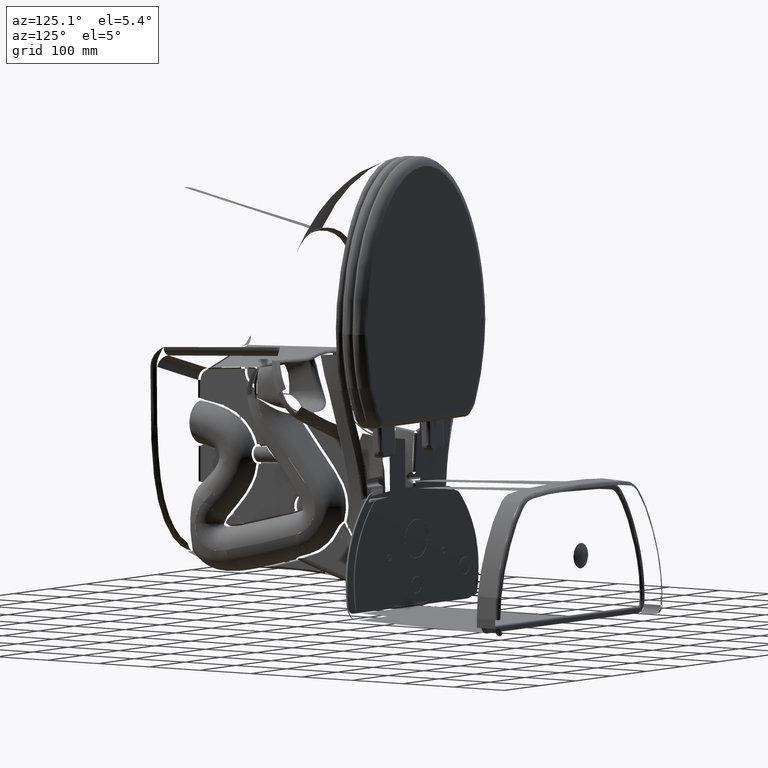
[diagram: clean part render]
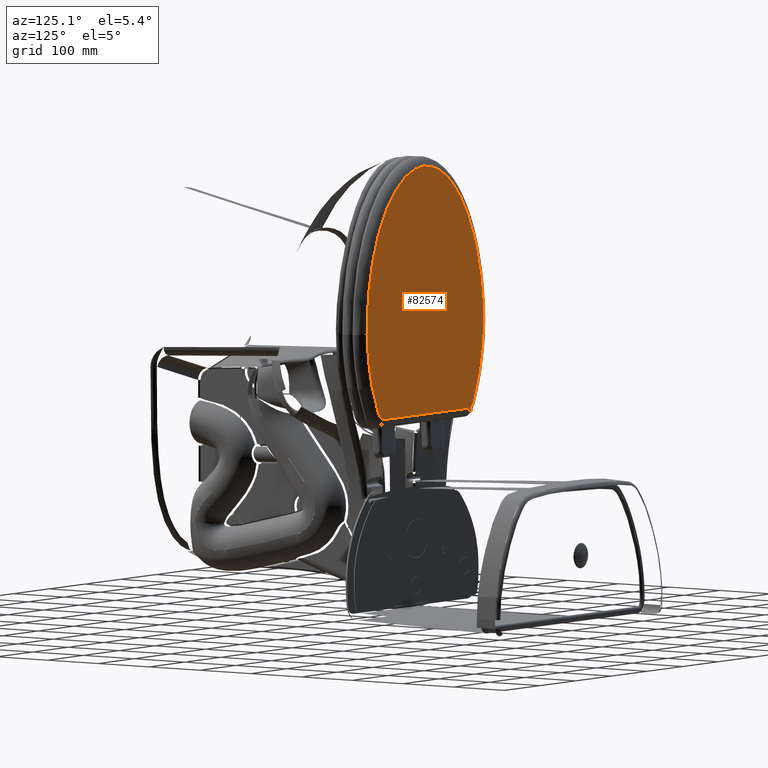
[diagram: same view with one face highlighted and labeled with its STEP entity id]
A machine part, auxiliary view. The second image highlights one B-rep face of the part: STEP entity #82574.
In plain terms, the highlighted planar face has unit normal (-0, -0.9999, -0.0102).
Its self-contained STEP definition (entity closure, byte-faithful):
#865 = CARTESIAN_POINT ( 'NONE',  ( 5.320272198442086900, 3.650597452639053700, 19.03277040948662700 ) ) ;
#1411 = CARTESIAN_POINT ( 'NONE',  ( 5.330114070908267700, 3.618011667579882600, 19.03243845478976600 ) ) ;
#4273 = ORIENTED_EDGE ( 'NONE', *, *, #122135, .F. ) ;
#4965 = CARTESIAN_POINT ( 'NONE',  ( -5.355982829305115300, 3.551518037480539700, 19.03189146855625000 ) ) ;
#8792 = CARTESIAN_POINT ( 'NONE',  ( -5.047790495872628300, -7.590367863099725600, 18.91842517770166400 ) ) ;
#10078 = CARTESIAN_POINT ( 'NONE',  ( -3.141558871009747300, -10.19416665022641600, 18.89188637735421500 ) ) ;
#11839 = CARTESIAN_POINT ( 'NONE',  ( -6.408510442966944600, -0.7357754000766926200, 18.98824496484606100 ) ) ;
#11900 = CARTESIAN_POINT ( 'NONE',  ( 5.567553507024518600, 3.077247470503669600, 19.02692873245329300 ) ) ;
#12405 = ORIENTED_EDGE ( 'NONE', *, *, #153646, .F. ) ;
#12881 = CARTESIAN_POINT ( 'NONE',  ( 5.952506107053210400, 2.052552126661968000, 19.01648802116910300 ) ) ;
#13623 =( BOUNDED_CURVE ( )  B_SPLINE_CURVE ( 3, ( #173692, #113389, #39952, #37359 ),
 .UNSPECIFIED., .F., .F. ) 
 B_SPLINE_CURVE_WITH_KNOTS ( ( 4, 4 ),
 ( 0.0000000000000000000, 0.9663879440670563000 ),
 .UNSPECIFIED. ) 
 CURVE ( )  GEOMETRIC_REPRESENTATION_ITEM ( )  RATIONAL_B_SPLINE_CURVE ( ( 1.000000000000000000, 0.9983942407032884200, 0.9983942407032884200, 1.000000000000000000 ) ) 
 REPRESENTATION_ITEM ( '' )  );
#14179 = CARTESIAN_POINT ( 'NONE',  ( 6.212371083594504700, 0.9600203427573625900, 19.00536025980751000 ) ) ;
#15868 = CARTESIAN_POINT ( 'NONE',  ( 5.345891962321260800, 3.579840337863110300, 19.03204954783386100 ) ) ;
#16068 = EDGE_CURVE ( 'NONE', #105849, #189129, #155373, .T. ) ;
#16514 = CARTESIAN_POINT ( 'NONE',  ( 5.344920519344095000, 3.582043203477716500, 19.03207199237756000 ) ) ;
#16936 = EDGE_CURVE ( 'NONE', #192121, #66939, #115607, .T. ) ;
#17790 = CARTESIAN_POINT ( 'NONE',  ( 5.341984073981890000, 3.588720548625551600, 19.03214002637047400 ) ) ;
#18436 = CARTESIAN_POINT ( 'NONE',  ( 5.346880621916283400, 3.577598662333544100, 19.03202670786281600 ) ) ;
#19379 =( BOUNDED_CURVE ( )  B_SPLINE_CURVE ( 3, ( #94632, #77611, #166820, #63862 ),
 .UNSPECIFIED., .F., .F. ) 
 B_SPLINE_CURVE_WITH_KNOTS ( ( 4, 4 ),
 ( 0.9663879440670563000, 1.000000000000000000 ),
 .UNSPECIFIED. ) 
 CURVE ( )  GEOMETRIC_REPRESENTATION_ITEM ( )  RATIONAL_B_SPLINE_CURVE ( ( 1.000000000000000000, 0.9999980566912657400, 0.9999980566912657400, 1.000000000000000000 ) ) 
 REPRESENTATION_ITEM ( '' )  );
#20196 = CARTESIAN_POINT ( 'NONE',  ( -5.907491459720979800, 2.042496088792724200, 19.01653117662419500 ) ) ;
#22559 = CARTESIAN_POINT ( 'NONE',  ( -3.835919019465054100, -9.450764594160372000, 18.89946521153629200 ) ) ;
#23209 = CARTESIAN_POINT ( 'NONE',  ( 6.434489726024349200, -1.954207253929638900, 18.97568074234649800 ) ) ;
#23358 = ORIENTED_EDGE ( 'NONE', *, *, #151805, .F. ) ;
#24076 = CARTESIAN_POINT ( 'NONE',  ( -4.982648442755905000, 4.868338377179134600, 19.04529666020039600 ) ) ;
#24499 = CARTESIAN_POINT ( 'NONE',  ( -6.373827653768312700, -2.662396621754677300, 18.96862494291763900 ) ) ;
#25157 = CARTESIAN_POINT ( 'NONE',  ( -2.771453452777102200, -10.50347795487779300, 18.88873202199566500 ) ) ;
#26904 = CARTESIAN_POINT ( 'NONE',  ( -6.421279189196843300, -1.300852907628501800, 18.98249069682578500 ) ) ;
#32150 = CARTESIAN_POINT ( 'NONE',  ( -5.273339640627136200, 3.891803706839121800, 19.03535573494443500 ) ) ;
#32187 = CARTESIAN_POINT ( 'NONE',  ( 5.327159998196851400, 3.627275633761220400, 19.03253282965354400 ) ) ;
#32543 = VERTEX_POINT ( 'NONE', #110731 ) ;
#33476 = CARTESIAN_POINT ( 'NONE',  ( 5.321631965506299800, 3.645934108488425400, 19.03272290412008200 ) ) ;
#34085 = FACE_OUTER_BOUND ( 'NONE', #193783, .T. ) ;
#37359 = CARTESIAN_POINT ( 'NONE',  ( -5.355982829305115300, 3.551518037480539700, 19.03189146855625000 ) ) ;
#38260 = CARTESIAN_POINT ( 'NONE',  ( 5.083454191896861700, -7.574328426499317100, 18.91846512556632800 ) ) ;
#38920 = CARTESIAN_POINT ( 'NONE',  ( 4.810558774051206600, -8.093396986094504100, 18.91318255447060900 ) ) ;
#39571 = CARTESIAN_POINT ( 'NONE',  ( 3.704410306001417300, -9.640906214808286000, 18.89743708524403200 ) ) ;
#39952 = CARTESIAN_POINT ( 'NONE',  ( -5.574620086935848200, 3.061686811069244600, 19.02690597278524000 ) ) ;
#40224 = CARTESIAN_POINT ( 'NONE',  ( 6.096180019903511200, -4.615859418060255200, 18.94858013282670600 ) ) ;
#44175 = CARTESIAN_POINT ( 'NONE',  ( 5.952506107053210400, 2.052552126661968000, 19.01648802116910300 ) ) ;
#46627 = CARTESIAN_POINT ( 'NONE',  ( 5.328588994193307100, 3.622630492437992200, 19.03248550881102500 ) ) ;
#51728 = CARTESIAN_POINT ( 'NONE',  ( -5.907711907250418700, 2.041736159411380300, 19.01652344062663500 ) ) ;
#53348 = CARTESIAN_POINT ( 'NONE',  ( -4.321163164969016500, -8.810047497923148900, 18.90599581451408200 ) ) ;
#55287 = CARTESIAN_POINT ( 'NONE',  ( 3.174157545879268600, -10.17715402181244100, 18.89198270496561300 ) ) ;
#58643 = VECTOR ( 'NONE', #94749, 39.37007874015748100 ) ;
#58969 = CARTESIAN_POINT ( 'NONE',  ( 4.766747872944940000, 4.290244698799481800, 19.03929116595906700 ) ) ;
#61036 = CARTESIAN_POINT ( 'NONE',  ( -4.843851034343106000, 4.277994260498322100, 19.03928281256225200 ) ) ;
#61331 = CARTESIAN_POINT ( 'NONE',  ( -4.843851034343106000, 4.277994260498322100, 19.03928281256225200 ) ) ;
#61711 = CARTESIAN_POINT ( 'NONE',  ( 5.320957980164172900, 3.648245387685236100, 19.03274644906220600 ) ) ;
#61777 = ORIENTED_EDGE ( 'NONE', *, *, #116060, .F. ) ;
#63632 = CARTESIAN_POINT ( 'NONE',  ( 5.335249529416535600, 3.604357669391890200, 19.03229934780590700 ) ) ;
#63862 = CARTESIAN_POINT ( 'NONE',  ( -5.333064504771924100, 3.602532342512641000, 19.03241068967876600 ) ) ;
#66939 = VERTEX_POINT ( 'NONE', #61331 ) ;
#68392 = CARTESIAN_POINT ( 'NONE',  ( -4.773718319851907300, -8.107200132950154600, 18.91315871817587200 ) ) ;
#69041 = CARTESIAN_POINT ( 'NONE',  ( 2.805146153946501000, -10.48693364490353700, 18.88883258223198400 ) ) ;
#69692 = CARTESIAN_POINT ( 'NONE',  ( -0.3939903831591020600, -11.50816030424519100, 18.87847196154216800 ) ) ;
#70342 = CARTESIAN_POINT ( 'NONE',  ( -6.421279189196843300, -1.300852907628501800, 18.98249069682578500 ) ) ;
#72796 = CARTESIAN_POINT ( 'NONE',  ( 5.769628448364277200, 2.568445771210066100, 19.02174567300068700 ) ) ;
#73383 = CARTESIAN_POINT ( 'NONE',  ( -6.065169000130645700, 1.498886737633962500, 19.01099729303031400 ) ) ;
#74290 = CARTESIAN_POINT ( 'NONE',  ( 5.236258497906924900, 3.938744065953688100, 19.03570575153659300 ) ) ;
#76106 = CARTESIAN_POINT ( 'NONE',  ( 5.322317513653937100, 3.643585913509960400, 19.03269898310787400 ) ) ;
#76746 = CARTESIAN_POINT ( 'NONE',  ( 5.341001182527166200, 3.590964490657047000, 19.03216288935196900 ) ) ;
#77611 = CARTESIAN_POINT ( 'NONE',  ( -5.348384407720300400, 3.568541212442836400, 19.03206473020582500 ) ) ;
#77783 = CARTESIAN_POINT ( 'NONE',  ( -5.907711907250418700, 2.041736159411380300, 19.01652344062663500 ) ) ;
#79321 = EDGE_CURVE ( 'NONE', #98993, #105849, #156558, .T. ) ;
#80452 = B_SPLINE_CURVE_WITH_KNOTS ( 'NONE', 3,
 ( #161349, #11900, #72796, #116756 ),
 .UNSPECIFIED., .F., .F.,
 ( 4, 4 ),
 ( 0.0000000000000000000, 1.000000000000000000 ),
 .UNSPECIFIED. ) ;
#82105 = AXIS2_PLACEMENT_3D ( 'NONE', #24076, #174168, #173544 ) ;
#82182 = CARTESIAN_POINT ( 'NONE',  ( -4.163424156577242700, -9.032294157667806200, 18.90373066167308400 ) ) ;
#82574 = ADVANCED_FACE ( 'NONE', ( #34085 ), #159764, .F. ) ;
#84144 = CARTESIAN_POINT ( 'NONE',  ( 4.201515411271494700, -9.022975633681412000, 18.90372367946670500 ) ) ;
#84242 = CARTESIAN_POINT ( 'NONE',  ( 5.346880621916283400, 3.577598662333544100, 19.03202670786281600 ) ) ;
#84798 = CARTESIAN_POINT ( 'NONE',  ( -0.8032442826013103100, -11.44417204838209700, 18.87912856532446400 ) ) ;
#85778 = CARTESIAN_POINT ( 'NONE',  ( -5.907638432444409600, 2.041989471439683800, 19.01652601931526800 ) ) ;
#86358 = ORIENTED_EDGE ( 'NONE', *, *, #145995, .F. ) ;
#86816 = EDGE_CURVE ( 'NONE', #159729, #32543, #163628, .T. ) ;
#87631 = CARTESIAN_POINT ( 'NONE',  ( -5.333064504771924100, 3.602532342512641000, 19.03241068967876600 ) ) ;
#90663 = CARTESIAN_POINT ( 'NONE',  ( 4.766747872944940000, 4.290244698799481800, 19.03929116595906700 ) ) ;
#93128 = CARTESIAN_POINT ( 'NONE',  ( 5.340032971064960800, 3.593186129046811200, 19.03218552502756100 ) ) ;
#94632 = CARTESIAN_POINT ( 'NONE',  ( -5.355982829305115300, 3.551518037480539700, 19.03189146855625000 ) ) ;
#94749 = DIRECTION ( 'NONE',  ( 0.9999991875954056300, 0.001274679522972517200, 8.015588863026252000E-007 ) ) ;
#97253 = CARTESIAN_POINT ( 'NONE',  ( -3.666154697667838700, -9.646987732832894100, 18.89746492076030600 ) ) ;
#98993 = VERTEX_POINT ( 'NONE', #44175 ) ;
#99835 = CARTESIAN_POINT ( 'NONE',  ( 0.4251253650923825800, -11.50881577982505300, 18.87845531053615000 ) ) ;
#100167 = CARTESIAN_POINT ( 'NONE',  ( -5.907491459720979800, 2.042496088792724200, 19.01653117662419500 ) ) ;
#104366 = ORIENTED_EDGE ( 'NONE', *, *, #16068, .F. ) ;
#105849 = VERTEX_POINT ( 'NONE', #134461 ) ;
#106273 = CARTESIAN_POINT ( 'NONE',  ( 5.343934171227953600, 3.584281766702559500, 19.03209480062637800 ) ) ;
#107569 = CARTESIAN_POINT ( 'NONE',  ( 5.333444613388189200, 3.608874501970079000, 19.03234536660472300 ) ) ;
#109593 = ORIENTED_EDGE ( 'NONE', *, *, #16936, .F. ) ;
#110731 = CARTESIAN_POINT ( 'NONE',  ( 5.320272198442086900, 3.650597452639053700, 19.03277040948662700 ) ) ;
#113010 = CARTESIAN_POINT ( 'NONE',  ( 5.765192526446172700, -5.862771883008284700, 18.93588632688737400 ) ) ;
#113389 = CARTESIAN_POINT ( 'NONE',  ( -5.758751992654711500, 2.557870497849775900, 19.02177764071732800 ) ) ;
#114288 = CARTESIAN_POINT ( 'NONE',  ( 6.222748733279753500, -3.965209289738631100, 18.95520443680912600 ) ) ;
#114948 = CARTESIAN_POINT ( 'NONE',  ( -6.070175914757030000, -4.640932205703348900, 18.94847298009171200 ) ) ;
#115607 =( BOUNDED_CURVE ( )  B_SPLINE_CURVE ( 3, ( #167206, #32150, #137035, #61036 ),
 .UNSPECIFIED., .F., .T. ) 
 B_SPLINE_CURVE_WITH_KNOTS ( ( 4, 4 ),
 ( 0.0000000000000000000, 1.000000000000000000 ),
 .UNSPECIFIED. ) 
 CURVE ( )  GEOMETRIC_REPRESENTATION_ITEM ( )  RATIONAL_B_SPLINE_CURVE ( ( 1.000000000000000000, 0.9411845459041755500, 0.9411845459041755500, 1.000000000000000000 ) ) 
 REPRESENTATION_ITEM ( '' )  );
#116060 = EDGE_CURVE ( 'NONE', #162096, #173799, #166600, .T. ) ;
#116756 = CARTESIAN_POINT ( 'NONE',  ( 5.952506107053210400, 2.052552126661968000, 19.01648802116910300 ) ) ;
#122101 = CARTESIAN_POINT ( 'NONE',  ( 5.039850663904768000, 4.165711020474836000, 19.03801944409731900 ) ) ;
#122135 = EDGE_CURVE ( 'NONE', #32543, #162847, #152260, .T. ) ;
#122640 = CARTESIAN_POINT ( 'NONE',  ( 5.324372888565355000, 3.636583328023898200, 19.03262764778543200 ) ) ;
#126872 = CARTESIAN_POINT ( 'NONE',  ( -4.981895713468325000, 4.277818294186403100, 19.03928313525188900 ) ) ;
#127433 = CARTESIAN_POINT ( 'NONE',  ( 2.616365496563414900, -10.62723032661137900, 18.88740618094357900 ) ) ;
#128095 = CARTESIAN_POINT ( 'NONE',  ( 5.560779388407580900, -6.458996792670880900, 18.92981720599637500 ) ) ;
#129371 = CARTESIAN_POINT ( 'NONE',  ( 2.040009530011741100, -11.00273565038368100, 18.88358927085274900 ) ) ;
#131785 = CARTESIAN_POINT ( 'NONE',  ( -5.907711907250418700, 2.041736159411380300, 19.01652344062663500 ) ) ;
#133168 = ORIENTED_EDGE ( 'NONE', *, *, #174588, .F. ) ;
#134120 = CARTESIAN_POINT ( 'NONE',  ( 6.433645643377164300, -1.272292894506294300, 18.98262497498202700 ) ) ;
#134461 = CARTESIAN_POINT ( 'NONE',  ( 6.433645643377164300, -1.272292894506294300, 18.98262497498202700 ) ) ;
#135422 = CARTESIAN_POINT ( 'NONE',  ( 6.373134999565685600, -0.1509153861395486600, 18.99404517342820100 ) ) ;
#135536 = VERTEX_POINT ( 'NONE', #4965 ) ;
#135825 = CARTESIAN_POINT ( 'NONE',  ( 5.337144926384645800, 3.599882515973346700, 19.03225375234134000 ) ) ;
#137035 = CARTESIAN_POINT ( 'NONE',  ( -5.100078022989575500, 4.131027749024910100, 19.03778974438992600 ) ) ;
#142541 = CARTESIAN_POINT ( 'NONE',  ( 4.359033136880133200, -8.799607715615643100, 18.90599641104346400 ) ) ;
#143182 = CARTESIAN_POINT ( 'NONE',  ( 3.874203245506419300, -9.443625261396153500, 18.89944401272557800 ) ) ;
#143666 = ORIENTED_EDGE ( 'NONE', *, *, #79321, .F. ) ;
#143825 = CARTESIAN_POINT ( 'NONE',  ( -6.199286134677389100, -3.991521913955331500, 18.95508777218869100 ) ) ;
#144470 = CARTESIAN_POINT ( 'NONE',  ( -1.608738143824917300, -11.19104613815908400, 18.88171606364971200 ) ) ;
#145995 = EDGE_CURVE ( 'NONE', #66939, #159729, #192409, .T. ) ;
#151805 = EDGE_CURVE ( 'NONE', #173799, #135536, #13623, .T. ) ;
#152260 = B_SPLINE_CURVE_WITH_KNOTS ( 'NONE', 4,
 ( #166596, #61711, #33476, #76106, #167240, #122640, #153464, #32187, #46627, #1411, #107569, #63632, #135825, #93128, #76746, #17790, #106273, #16514, #15868, #18436 ),
 .UNSPECIFIED., .F., .F.,
 ( 5, 3, 3, 3, 3, 3, 5 ),
 ( 0.0000000000000000000, 0.1250000000000000000, 0.2500000000000000000, 0.5000000000000000000, 0.7500000000000000000, 0.8750000000000000000, 1.000000000000000000 ),
 .UNSPECIFIED. ) ;
#153464 = CARTESIAN_POINT ( 'NONE',  ( 5.325061428125590800, 3.634259758370039800, 19.03260397750708700 ) ) ;
#153646 = EDGE_CURVE ( 'NONE', #189129, #162096, #189153, .T. ) ;
#155373 = B_SPLINE_CURVE_WITH_KNOTS ( 'NONE', 3,
 ( #159544, #23209, #157624, #114288, #40224, #113010, #128095, #38260, #38920, #142541, #84144, #143182, #39571, #187093, #55287, #69041, #127433, #129371, #160174, #173948, #99835, #69692, #84798, #144470, #173311, #25157, #10078, #97253, #22559, #82182, #53348, #68392, #8792, #188364, #172661, #114948, #143825, #24499, #189021, #70342 ),
 .UNSPECIFIED., .F., .F.,
 ( 4, 2, 2, 2, 2, 2, 2, 2, 2, 2, 2, 2, 2, 2, 2, 2, 2, 2, 2, 4 ),
 ( 0.0000000000000000000, 0.06250000000000008300, 0.1250000000000001700, 0.1875000000000002500, 0.2500000000000003300, 0.2812500000000003300, 0.3125000000000002800, 0.3437500000000002800, 0.3750000000000002800, 0.4375000000000002200, 0.5000000000000002200, 0.5625000000000002200, 0.6250000000000001100, 0.6875000000000001100, 0.7187500000000002200, 0.7500000000000002200, 0.8125000000000002200, 0.8750000000000001100, 0.9375000000000001100, 1.000000000000000000 ),
 .UNSPECIFIED. ) ;
#156558 = B_SPLINE_CURVE_WITH_KNOTS ( 'NONE', 3,
 ( #12881, #176096, #14179, #135422, #181264, #134120 ),
 .UNSPECIFIED., .F., .F.,
 ( 4, 2, 4 ),
 ( 0.0000000000000000000, 0.5000000000000000000, 1.000000000000000000 ),
 .UNSPECIFIED. ) ;
#157624 = CARTESIAN_POINT ( 'NONE',  ( 6.391902643510708700, -2.634366037959460400, 18.96875491642698100 ) ) ;
#159544 = CARTESIAN_POINT ( 'NONE',  ( 6.433645643377164300, -1.272292894506294300, 18.98262497498202700 ) ) ;
#159729 = VERTEX_POINT ( 'NONE', #58969 ) ;
#159764 = PLANE ( 'NONE',  #82105 ) ;
#160174 = CARTESIAN_POINT ( 'NONE',  ( 1.642463630127653400, -11.19242571349346900, 18.88166241842469600 ) ) ;
#161349 = CARTESIAN_POINT ( 'NONE',  ( 5.346880621916283400, 3.577598662333544100, 19.03202670786281600 ) ) ;
#162096 = VERTEX_POINT ( 'NONE', #77783 ) ;
#162847 = VERTEX_POINT ( 'NONE', #84242 ) ;
#163233 = CARTESIAN_POINT ( 'NONE',  ( -6.187328981597433500, 0.9458030117985222200, 19.00536649530157300 ) ) ;
#163628 =( BOUNDED_CURVE ( )  B_SPLINE_CURVE ( 3, ( #90663, #122101, #74290, #865 ),
 .UNSPECIFIED., .F., .T. ) 
 B_SPLINE_CURVE_WITH_KNOTS ( ( 4, 4 ),
 ( 0.0000000000000000000, 1.000000000000000000 ),
 .UNSPECIFIED. ) 
 CURVE ( )  GEOMETRIC_REPRESENTATION_ITEM ( )  RATIONAL_B_SPLINE_CURVE ( ( 1.000000000000000000, 0.9394131836621652000, 0.9394131836621652000, 1.000000000000000000 ) ) 
 REPRESENTATION_ITEM ( '' )  );
#163890 = CARTESIAN_POINT ( 'NONE',  ( -6.359000109423954300, -0.1715307022060171300, 18.99399030427773000 ) ) ;
#166596 = CARTESIAN_POINT ( 'NONE',  ( 5.320272198442086900, 3.650597452639053700, 19.03277040948662700 ) ) ;
#166600 =( BOUNDED_CURVE ( )  B_SPLINE_CURVE ( 3, ( #51728, #85778, #174257, #100167 ),
 .UNSPECIFIED., .F., .F. ) 
 B_SPLINE_CURVE_WITH_KNOTS ( ( 4, 4 ),
 ( 0.9997667374043239800, 1.000000000000000000 ),
 .UNSPECIFIED. ) 
 CURVE ( )  GEOMETRIC_REPRESENTATION_ITEM ( )  RATIONAL_B_SPLINE_CURVE ( ( 1.000000000000000000, 0.9999999996940360800, 0.9999999996940360800, 1.000000000000000000 ) ) 
 REPRESENTATION_ITEM ( '' )  );
#166820 = CARTESIAN_POINT ( 'NONE',  ( -5.340744975424384800, 3.585546024571157500, 19.03223780435931900 ) ) ;
#167206 = CARTESIAN_POINT ( 'NONE',  ( -5.333064504771924100, 3.602532342512641000, 19.03241068967876600 ) ) ;
#167240 = CARTESIAN_POINT ( 'NONE',  ( 5.323681233125197000, 3.638933416060472500, 19.03265158814960900 ) ) ;
#172661 = CARTESIAN_POINT ( 'NONE',  ( -5.734667485837818800, -5.884752385735438900, 18.93580254697367600 ) ) ;
#173311 = CARTESIAN_POINT ( 'NONE',  ( -2.005029648855670500, -11.00189116606256700, 18.88364713517426500 ) ) ;
#173544 = DIRECTION ( 'NONE',  ( 0.0000000000000000000, 0.9999481529806908400, 0.01018289499626042400 ) ) ;
#173692 = CARTESIAN_POINT ( 'NONE',  ( -5.907491459720979800, 2.042496088792724200, 19.01653117662419500 ) ) ;
#173799 = VERTEX_POINT ( 'NONE', #20196 ) ;
#173948 = CARTESIAN_POINT ( 'NONE',  ( 0.8350242434620407400, -11.44545439215001700, 18.87909555418266200 ) ) ;
#174168 = DIRECTION ( 'NONE',  ( -1.217842030133437500E-005, 0.01018289499550529200, -0.9999481529065378200 ) ) ;
#174257 = CARTESIAN_POINT ( 'NONE',  ( -5.907564949888818100, 2.042242781220262600, 19.01652859798096200 ) ) ;
#174588 = EDGE_CURVE ( 'NONE', #135536, #192121, #19379, .T. ) ;
#176096 = CARTESIAN_POINT ( 'NONE',  ( 6.098684226257241800, 1.510667184525198700, 19.01096911410604000 ) ) ;
#178370 = EDGE_CURVE ( 'NONE', #162847, #98993, #80452, .T. ) ;
#181264 = CARTESIAN_POINT ( 'NONE',  ( 6.420211507248377600, -0.7112004660338717700, 18.98833898012481600 ) ) ;
#185752 = ORIENTED_EDGE ( 'NONE', *, *, #178370, .F. ) ;
#187093 = CARTESIAN_POINT ( 'NONE',  ( 3.354386584699365700, -10.00767071829382900, 18.89370643011927300 ) ) ;
#188364 = CARTESIAN_POINT ( 'NONE',  ( -5.528274895341163600, -6.479123780807351600, 18.92974729801370500 ) ) ;
#188942 = CARTESIAN_POINT ( 'NONE',  ( -6.421279189196843300, -1.300852907628501800, 18.98249069682578500 ) ) ;
#189021 = CARTESIAN_POINT ( 'NONE',  ( -6.419261071346667800, -1.982716662073309200, 18.97554696474046700 ) ) ;
#189129 = VERTEX_POINT ( 'NONE', #188942 ) ;
#189153 = B_SPLINE_CURVE_WITH_KNOTS ( 'NONE', 3,
 ( #26904, #11839, #163890, #163233, #73383, #131785 ),
 .UNSPECIFIED., .F., .F.,
 ( 4, 2, 4 ),
 ( 0.0000000000000000000, 0.4998833687021619900, 0.9997667374043239800 ),
 .UNSPECIFIED. ) ;
#192121 = VERTEX_POINT ( 'NONE', #87631 ) ;
#192409 = LINE ( 'NONE', #126872, #58643 ) ;
#193783 = EDGE_LOOP ( 'NONE', ( #12405, #104366, #143666, #185752, #4273, #194655, #86358, #109593, #133168, #23358, #61777 ) ) ;
#194655 = ORIENTED_EDGE ( 'NONE', *, *, #86816, .F. ) ;